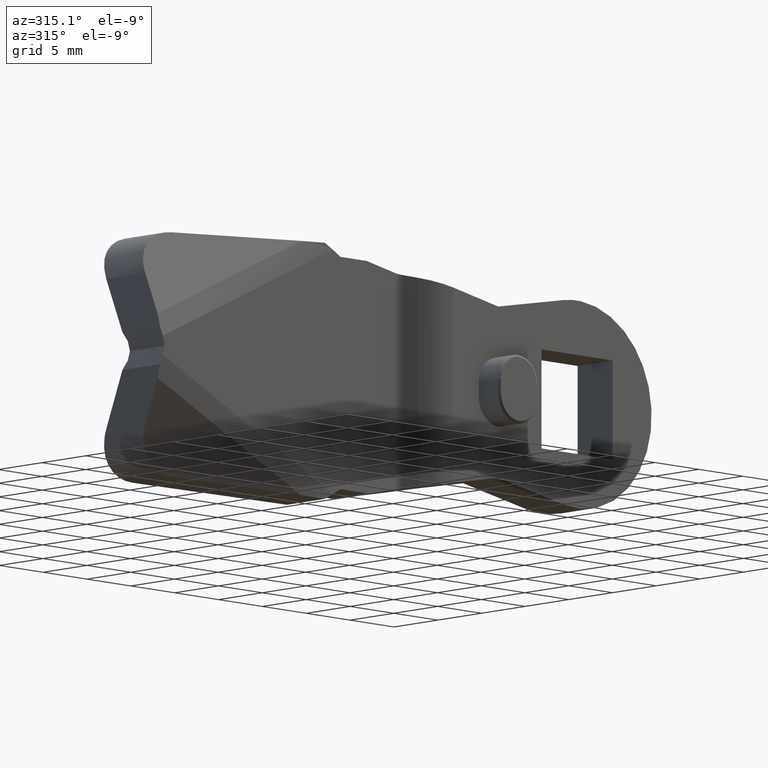
[diagram: clean part render]
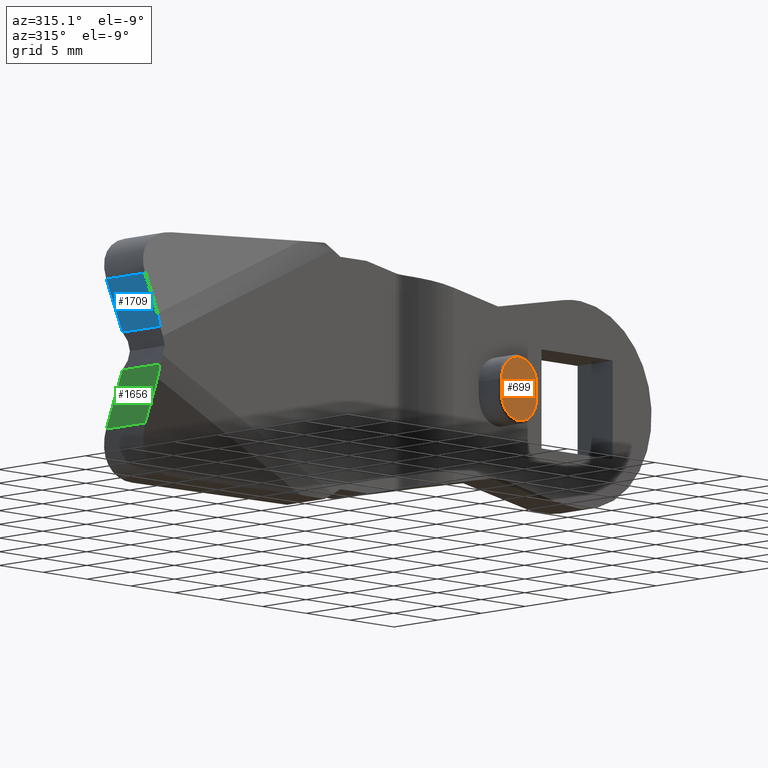
[diagram: same view with three faces highlighted in distinct colors, each labeled with its STEP entity id]
A machine part, auxiliary view with three faces highlighted in distinct colors.
Their STEP definitions:

[orange] entity #699 — the highlighted face is a freeform B-spline surface patch.
#304=CARTESIAN_POINT('',(-7.000000322982610,-8.396789549849169,-0.600000028498471));
#305=VERTEX_POINT('',#304);
#328=CARTESIAN_POINT('',(-7.000000322982610,-8.396789549849169,0.600000026161268));
#329=VERTEX_POINT('',#328);
#343=CARTESIAN_POINT('',(-7.000000322982610,-8.396789549849169,-0.600000028498471));
#344=CARTESIAN_POINT('',(-7.000000322982610,-8.396789549849169,0.600000026161268));
#345=QUASI_UNIFORM_CURVE('',1,(#343,#344),.UNSPECIFIED.,.F.,.U.);
#346=EDGE_CURVE('',#305,#329,#345,.T.);
#376=CARTESIAN_POINT('',(-11.000000531971400,-8.396789549849169,0.600000027588789));
#377=VERTEX_POINT('',#376);
#393=CARTESIAN_POINT('',(-7.000000322982615,-8.396789549849169,0.600000026161268));
#394=CARTESIAN_POINT('',(-7.000000321633229,-8.396789549849169,1.754700625591916));
#395=CARTESIAN_POINT('',(-8.000000374143029,-8.396789549849169,2.332050925934695));
#396=CARTESIAN_POINT('',(-9.000000426652830,-8.396789549849169,2.909401226277474));
#397=CARTESIAN_POINT('',(-10.000000479574719,-8.396789549849169,2.332050926648456));
#398=CARTESIAN_POINT('',(-11.000000532496609,-8.396789549849169,1.754700627019439));
#399=CARTESIAN_POINT('',(-11.000000531971400,-8.396789549849169,0.600000027588790));
#407=(BOUNDED_CURVE()B_SPLINE_CURVE(2,(#393,#394,#395,#396,#397,#398,#399),.UNSPECIFIED.,.F.,.U.)B_SPLINE_CURVE_WITH_KNOTS((3,2,2,3),(0.0,0.333333333333333,0.666666666666667,1.0),.UNSPECIFIED.)CURVE()GEOMETRIC_REPRESENTATION_ITEM()RATIONAL_B_SPLINE_CURVE((1.0,0.866025403649152,1.0,0.866025403649152,1.0,0.866025403649152,1.0))REPRESENTATION_ITEM(''));
#408=EDGE_CURVE('',#329,#377,#407,.T.);
#454=CARTESIAN_POINT('',(-11.000000531971400,-8.396789549849169,-0.600000027967269));
#455=VERTEX_POINT('',#454);
#489=CARTESIAN_POINT('',(-11.000000531971400,-8.396789549849169,-0.600000027967269));
#490=CARTESIAN_POINT('',(-11.000000532278094,-8.396789549849169,-1.754700626794432));
#491=CARTESIAN_POINT('',(-10.000000480030900,-8.396789549849169,-2.332050926385081));
#492=CARTESIAN_POINT('',(-9.000000427783702,-8.396789549849169,-2.909401225975730));
#493=CARTESIAN_POINT('',(-8.000000375383159,-8.396789549849169,-2.332050926650684));
#494=CARTESIAN_POINT('',(-7.000000322982615,-8.396789549849169,-1.754700627325635));
#495=CARTESIAN_POINT('',(-7.000000322982615,-8.396789549849169,-0.600000028498471));
#503=(BOUNDED_CURVE()B_SPLINE_CURVE(2,(#489,#490,#491,#492,#493,#494,#495),.UNSPECIFIED.,.F.,.U.)B_SPLINE_CURVE_WITH_KNOTS((3,2,2,3),(0.0,0.333333333333333,0.666666666666667,1.0),.UNSPECIFIED.)CURVE()GEOMETRIC_REPRESENTATION_ITEM()RATIONAL_B_SPLINE_CURVE((1.0,0.866025403762305,1.0,0.866025403762305,1.0,0.866025403762305,1.0))REPRESENTATION_ITEM(''));
#504=EDGE_CURVE('',#455,#305,#503,.T.);
#530=CARTESIAN_POINT('',(-11.000000531971400,-8.396789549849169,0.600000027588789));
#531=CARTESIAN_POINT('',(-11.000000531971400,-8.396789549849169,-0.600000027967269));
#532=QUASI_UNIFORM_CURVE('',1,(#530,#531),.UNSPECIFIED.,.F.,.U.);
#533=EDGE_CURVE('',#377,#455,#532,.T.);
#688=CARTESIAN_POINT('',(-11.199800970956490,-8.396789549849169,-2.859740185014125));
#689=CARTESIAN_POINT('',(-6.800200491964934,-8.396789549849169,-2.859740185014125));
#690=CARTESIAN_POINT('',(-11.199800970956490,-8.396789549849171,2.859740277997377));
#691=CARTESIAN_POINT('',(-6.800200491964934,-8.396789549849171,2.859740277997377));
#692=B_SPLINE_SURFACE_WITH_KNOTS('',1,1,((#688,#690),(#689,#691)),.UNSPECIFIED.,.F.,.F.,.U.,(2,2),(2,2),(0.0,4.399600478991553),(0.0,5.719480463011502),.UNSPECIFIED.);
#693=ORIENTED_EDGE('',*,*,#504,.T.);
#694=ORIENTED_EDGE('',*,*,#346,.T.);
#695=ORIENTED_EDGE('',*,*,#408,.T.);
#696=ORIENTED_EDGE('',*,*,#533,.T.);
#697=EDGE_LOOP('',(#693,#694,#695,#696));
#698=FACE_OUTER_BOUND('',#697,.T.);
#699=ADVANCED_FACE('',(#698),#692,.T.);

[blue] entity #1709 — the highlighted face is a freeform B-spline surface patch.
#1133=CARTESIAN_POINT('',(-45.422700162126702,-3.589033668687000,2.637240661485390));
#1134=VERTEX_POINT('',#1133);
#1140=CARTESIAN_POINT('',(-45.460283177382600,-3.919693638437140,1.547154255351760));
#1141=VERTEX_POINT('',#1140);
#1142=CARTESIAN_POINT('',(-45.460283177382600,-3.919693638437140,1.547154255351760));
#1143=CARTESIAN_POINT('',(-45.440664152732758,-3.816827052939998,2.116199392543504));
#1144=CARTESIAN_POINT('',(-45.422700162126681,-3.589033668687001,2.637240661485389));
#1152=(BOUNDED_CURVE()B_SPLINE_CURVE(2,(#1142,#1143,#1144),.UNSPECIFIED.,.F.,.U.)CURVE()GEOMETRIC_REPRESENTATION_ITEM()QUASI_UNIFORM_CURVE()RATIONAL_B_SPLINE_CURVE((1.0,0.991783610842067,1.0))REPRESENTATION_ITEM(''));
#1153=EDGE_CURVE('',#1141,#1134,#1152,.T.);
#1297=CARTESIAN_POINT('',(-45.460283177382600,0.392417751756968,1.547154255351755));
#1298=VERTEX_POINT('',#1297);
#1299=CARTESIAN_POINT('',(-45.460283177382600,0.392417751756968,1.547154255351755));
#1300=CARTESIAN_POINT('',(-45.460283177382600,-3.919693638437140,1.547154255351760));
#1301=QUASI_UNIFORM_CURVE('',1,(#1299,#1300),.UNSPECIFIED.,.F.,.U.);
#1302=EDGE_CURVE('',#1298,#1141,#1301,.T.);
#1464=CARTESIAN_POINT('',(-45.302375168507503,-2.063245879781040,6.127238442916280));
#1465=VERTEX_POINT('',#1464);
#1486=CARTESIAN_POINT('',(-45.302375168507503,2.394779060617760,6.127238442916280));
#1487=VERTEX_POINT('',#1486);
#1501=CARTESIAN_POINT('',(-45.302375168507503,-2.063245879781040,6.127238442916280));
#1502=CARTESIAN_POINT('',(-45.302375168507503,2.394779060617760,6.127238442916280));
#1503=QUASI_UNIFORM_CURVE('',1,(#1501,#1502),.UNSPECIFIED.,.F.,.U.);
#1504=EDGE_CURVE('',#1465,#1487,#1503,.T.);
#1577=CARTESIAN_POINT('',(-45.302375168507503,-2.063245879781040,6.127238442916280));
#1578=CARTESIAN_POINT('',(-45.422700162126702,-3.589033668687000,2.637240661485390));
#1579=QUASI_UNIFORM_CURVE('',1,(#1577,#1578),.UNSPECIFIED.,.F.,.U.);
#1580=EDGE_CURVE('',#1465,#1134,#1579,.T.);
#1663=CARTESIAN_POINT('',(-45.302375168507503,2.394779060617760,6.127238442916280));
#1664=CARTESIAN_POINT('',(-45.460283177382600,0.392417751756968,1.547154255351755));
#1665=QUASI_UNIFORM_CURVE('',1,(#1663,#1664),.UNSPECIFIED.,.F.,.U.);
#1666=EDGE_CURVE('',#1487,#1298,#1665,.T.);
#1697=CARTESIAN_POINT('',(-45.468170678590987,-4.235101633508030,1.318379161412382));
#1698=CARTESIAN_POINT('',(-45.294487671534419,-4.235101633508030,6.356013414008219));
#1699=CARTESIAN_POINT('',(-45.468170678590987,2.710186660498152,1.318379161412382));
#1700=CARTESIAN_POINT('',(-45.294487671534419,2.710186660498152,6.356013414008219));
#1701=B_SPLINE_SURFACE_WITH_KNOTS('',1,1,((#1697,#1699),(#1698,#1700)),.UNSPECIFIED.,.F.,.F.,.U.,(2,2),(2,2),(0.0,5.040627406371852),(0.0,6.945288294006183),.UNSPECIFIED.);
#1702=ORIENTED_EDGE('',*,*,#1302,.T.);
#1703=ORIENTED_EDGE('',*,*,#1153,.T.);
#1704=ORIENTED_EDGE('',*,*,#1580,.F.);
#1705=ORIENTED_EDGE('',*,*,#1504,.T.);
#1706=ORIENTED_EDGE('',*,*,#1666,.T.);
#1707=EDGE_LOOP('',(#1702,#1703,#1704,#1705,#1706));
#1708=FACE_OUTER_BOUND('',#1707,.T.);
#1709=ADVANCED_FACE('',(#1708),#1701,.T.);

[green] entity #1656 — the highlighted face is a freeform B-spline surface patch.
#1207=CARTESIAN_POINT('',(-45.422700162126702,-3.589033668687000,-2.637240661485515));
#1208=VERTEX_POINT('',#1207);
#1209=CARTESIAN_POINT('',(-45.460283177382401,-3.919693638437140,-1.547154255358015));
#1210=VERTEX_POINT('',#1209);
#1211=CARTESIAN_POINT('',(-45.422700162126667,-3.589033668686999,-2.637240661485515));
#1212=CARTESIAN_POINT('',(-45.440664152727827,-3.816827052877726,-2.116199392686061));
#1213=CARTESIAN_POINT('',(-45.460283177382401,-3.919693638437140,-1.547154255358015));
#1221=(BOUNDED_CURVE()B_SPLINE_CURVE(2,(#1211,#1212,#1213),.UNSPECIFIED.,.F.,.U.)CURVE()GEOMETRIC_REPRESENTATION_ITEM()QUASI_UNIFORM_CURVE()RATIONAL_B_SPLINE_CURVE((1.0,0.991783610846503,1.0))REPRESENTATION_ITEM(''));
#1222=EDGE_CURVE('',#1208,#1210,#1221,.T.);
#1331=CARTESIAN_POINT('',(-45.460283177382500,0.392417751755757,-1.547154255354785));
#1332=VERTEX_POINT('',#1331);
#1333=CARTESIAN_POINT('',(-45.460283177382401,-3.919693638437140,-1.547154255358015));
#1334=CARTESIAN_POINT('',(-45.460283177382500,0.392417751755757,-1.547154255354785));
#1335=QUASI_UNIFORM_CURVE('',1,(#1333,#1334),.UNSPECIFIED.,.F.,.U.);
#1336=EDGE_CURVE('',#1210,#1332,#1335,.T.);
#1374=CARTESIAN_POINT('',(-45.302375168507503,-2.063245879781040,-6.127238442916400));
#1375=VERTEX_POINT('',#1374);
#1391=CARTESIAN_POINT('',(-45.302375168507403,2.394779060617760,-6.127238442916410));
#1392=VERTEX_POINT('',#1391);
#1393=CARTESIAN_POINT('',(-45.302375168507403,2.394779060617760,-6.127238442916410));
#1394=CARTESIAN_POINT('',(-45.302375168507503,-2.063245879781040,-6.127238442916400));
#1395=QUASI_UNIFORM_CURVE('',1,(#1393,#1394),.UNSPECIFIED.,.F.,.U.);
#1396=EDGE_CURVE('',#1392,#1375,#1395,.T.);
#1631=CARTESIAN_POINT('',(-45.422700162126702,-3.589033668687000,-2.637240661485515));
#1632=CARTESIAN_POINT('',(-45.302375168507503,-2.063245879781040,-6.127238442916400));
#1633=QUASI_UNIFORM_CURVE('',1,(#1631,#1632),.UNSPECIFIED.,.F.,.U.);
#1634=EDGE_CURVE('',#1208,#1375,#1633,.T.);
#1640=CARTESIAN_POINT('',(-45.468170678590880,2.710186900421126,-1.318379161415556));
#1641=CARTESIAN_POINT('',(-45.294487671534398,2.710186900421126,-6.356013414008207));
#1642=CARTESIAN_POINT('',(-45.468170678590880,-4.235101704063648,-1.318379161415556));
#1643=CARTESIAN_POINT('',(-45.294487671534398,-4.235101704063648,-6.356013414008207));
#1644=B_SPLINE_SURFACE_WITH_KNOTS('',1,1,((#1640,#1642),(#1641,#1643)),.UNSPECIFIED.,.F.,.F.,.U.,(2,2),(2,2),(0.0,5.040627406368667),(0.0,6.945288604484774),.UNSPECIFIED.);
#1645=ORIENTED_EDGE('',*,*,#1634,.F.);
#1646=ORIENTED_EDGE('',*,*,#1222,.T.);
#1647=ORIENTED_EDGE('',*,*,#1336,.T.);
#1648=CARTESIAN_POINT('',(-45.460283177382500,0.392417751755757,-1.547154255354785));
#1649=CARTESIAN_POINT('',(-45.302375168507403,2.394779060617760,-6.127238442916410));
#1650=QUASI_UNIFORM_CURVE('',1,(#1648,#1649),.UNSPECIFIED.,.F.,.U.);
#1651=EDGE_CURVE('',#1332,#1392,#1650,.T.);
#1652=ORIENTED_EDGE('',*,*,#1651,.T.);
#1653=ORIENTED_EDGE('',*,*,#1396,.T.);
#1654=EDGE_LOOP('',(#1645,#1646,#1647,#1652,#1653));
#1655=FACE_OUTER_BOUND('',#1654,.T.);
#1656=ADVANCED_FACE('',(#1655),#1644,.T.);